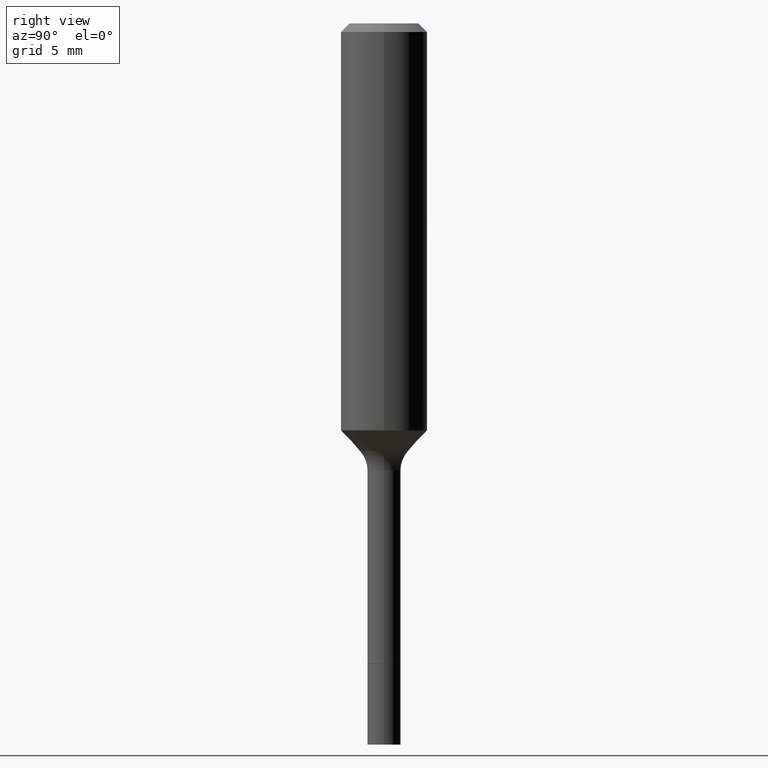
[diagram: clean part render]
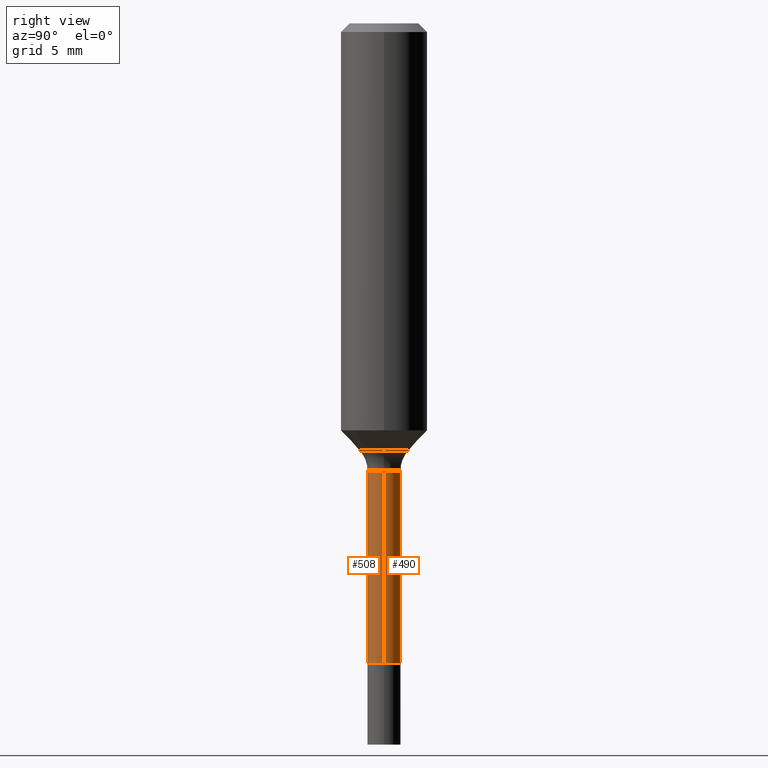
[diagram: same view with one multi-face feature highlighted, each face labeled with its STEP entity id]
A machine part, right view. The highlighted faces form ONE feature: a constant-radius fillet chain: 2 tangent blend faces with common blend radius 1.1506 mm. The faces share edges in the B-rep.
Their STEP definitions:
[1] entity #490 (Cylinder):
#3 = CARTESIAN_POINT ( 'NONE',  ( -0.04529999999999993060, -4.858609577209192694E-15, -1.220499999999999918 ) ) ;
#21 = EDGE_CURVE ( 'NONE', #326, #489, #24, .T. ) ;
#24 = CIRCLE ( 'NONE', #380, 0.04529999999999999999 ) ;
#29 = CARTESIAN_POINT ( 'NONE',  ( 4.272234004405433917E-29, -6.099617898958976438E-15, -1.747000000000000330 ) ) ;
#94 = EDGE_LOOP ( 'NONE', ( #477, #403, #296, #418 ) ) ;
#100 = AXIS2_PLACEMENT_3D ( 'NONE', #510, #512, #509 ) ;
#137 = CARTESIAN_POINT ( 'NONE',  ( 0.000000000000000000, 0.000000000000000000, 0.000000000000000000 ) ) ;
#150 = VECTOR ( 'NONE', #159, 39.37007874015748143 ) ;
#159 = DIRECTION ( 'NONE',  ( -2.445468806185136877E-29, 3.491481338843145188E-15, 1.000000000000000000 ) ) ;
#168 = LINE ( 'NONE', #399, #150 ) ;
#177 = AXIS2_PLACEMENT_3D ( 'NONE', #137, #295, #413 ) ;
#178 = CYLINDRICAL_SURFACE ( 'NONE', #177, 0.04529999999999996529 ) ;
#224 = VECTOR ( 'NONE', #488, 39.37007874015748143 ) ;
#269 = EDGE_CURVE ( 'NONE', #449, #400, #352, .T. ) ;
#292 = CARTESIAN_POINT ( 'NONE',  ( 0.04529999999999993060, -4.577681183357246518E-15, -1.220499999999999918 ) ) ;
#295 = DIRECTION ( 'NONE',  ( -2.445468806185136597E-29, 3.491481338843145583E-15, 1.000000000000000000 ) ) ;
#296 = ORIENTED_EDGE ( 'NONE', *, *, #269, .F. ) ;
#299 = EDGE_CURVE ( 'NONE', #489, #400, #168, .T. ) ;
#326 = VERTEX_POINT ( 'NONE', #447 ) ;
#338 = DIRECTION ( 'NONE',  ( 1.000000000000000000, -6.982962677686271444E-15, 0.000000000000000000 ) ) ;
#352 = CIRCLE ( 'NONE', #100, 0.04529999999999993060 ) ;
#367 = EDGE_CURVE ( 'NONE', #326, #449, #485, .T. ) ;
#377 = DIRECTION ( 'NONE',  ( -2.445468806185136597E-29, 3.491481338843145583E-15, 1.000000000000000000 ) ) ;
#379 = CARTESIAN_POINT ( 'NONE',  ( -0.04529999999999999999, -4.858609577209191905E-15, -1.747000000000000330 ) ) ;
#380 = AXIS2_PLACEMENT_3D ( 'NONE', #29, #377, #338 ) ;
#399 = CARTESIAN_POINT ( 'NONE',  ( -0.04529999999999996529, 3.218758592993251376E-16, -2.228277595885470812E-30 ) ) ;
#400 = VERTEX_POINT ( 'NONE', #3 ) ;
#403 = ORIENTED_EDGE ( 'NONE', *, *, #299, .T. ) ;
#413 = DIRECTION ( 'NONE',  ( 1.000000000000000000, -6.982962677686266711E-15, 4.876176775795936353E-29 ) ) ;
#418 = ORIENTED_EDGE ( 'NONE', *, *, #367, .F. ) ;
#433 = CARTESIAN_POINT ( 'NONE',  ( 0.04529999999999996529, -3.163282092991876386E-16, 2.208908079435557437E-30 ) ) ;
#447 = CARTESIAN_POINT ( 'NONE',  ( 0.04529999999999999999, -6.415946108258164718E-15, -1.747000000000000330 ) ) ;
#449 = VERTEX_POINT ( 'NONE', #292 ) ;
#477 = ORIENTED_EDGE ( 'NONE', *, *, #21, .T. ) ;
#485 = LINE ( 'NONE', #433, #224 ) ;
#488 = DIRECTION ( 'NONE',  ( -2.445468806185136877E-29, 3.491481338843145188E-15, 1.000000000000000000 ) ) ;
#489 = VERTEX_POINT ( 'NONE', #379 ) ;
#490 = ADVANCED_FACE ( 'NONE', ( #496 ), #178, .T. ) ;
#496 = FACE_OUTER_BOUND ( 'NONE', #94, .T. ) ;
#509 = DIRECTION ( 'NONE',  ( 1.000000000000000000, -6.982962677686260400E-15, 0.000000000000000000 ) ) ;
#510 = CARTESIAN_POINT ( 'NONE',  ( 2.984694677948959472E-29, -4.261352974058059028E-15, -1.220499999999999918 ) ) ;
#512 = DIRECTION ( 'NONE',  ( -2.445468806185136597E-29, 3.491481338843145583E-15, 1.000000000000000000 ) ) ;
[2] entity #508 (Cylinder):
#3 = CARTESIAN_POINT ( 'NONE',  ( -0.04529999999999993060, -4.858609577209192694E-15, -1.220499999999999918 ) ) ;
#22 = CARTESIAN_POINT ( 'NONE',  ( 0.000000000000000000, 0.000000000000000000, 0.000000000000000000 ) ) ;
#72 = CIRCLE ( 'NONE', #423, 0.04529999999999993060 ) ;
#83 = ORIENTED_EDGE ( 'NONE', *, *, #426, .F. ) ;
#101 = FACE_OUTER_BOUND ( 'NONE', #140, .T. ) ;
#105 = ORIENTED_EDGE ( 'NONE', *, *, #367, .T. ) ;
#138 = ORIENTED_EDGE ( 'NONE', *, *, #299, .F. ) ;
#140 = EDGE_LOOP ( 'NONE', ( #138, #365, #105, #83 ) ) ;
#150 = VECTOR ( 'NONE', #159, 39.37007874015748143 ) ;
#152 = DIRECTION ( 'NONE',  ( -2.445468806185136597E-29, 3.491481338843145583E-15, 1.000000000000000000 ) ) ;
#157 = CARTESIAN_POINT ( 'NONE',  ( 4.272234004405433917E-29, -6.099617898958976438E-15, -1.747000000000000330 ) ) ;
#159 = DIRECTION ( 'NONE',  ( -2.445468806185136877E-29, 3.491481338843145188E-15, 1.000000000000000000 ) ) ;
#168 = LINE ( 'NONE', #399, #150 ) ;
#214 = DIRECTION ( 'NONE',  ( 1.000000000000000000, -6.982962677686260400E-15, 0.000000000000000000 ) ) ;
#224 = VECTOR ( 'NONE', #488, 39.37007874015748143 ) ;
#257 = DIRECTION ( 'NONE',  ( -2.445468806185136597E-29, 3.491481338843145583E-15, 1.000000000000000000 ) ) ;
#271 = EDGE_CURVE ( 'NONE', #489, #326, #294, .T. ) ;
#280 = DIRECTION ( 'NONE',  ( -2.445468806185136597E-29, 3.491481338843145583E-15, 1.000000000000000000 ) ) ;
#292 = CARTESIAN_POINT ( 'NONE',  ( 0.04529999999999993060, -4.577681183357246518E-15, -1.220499999999999918 ) ) ;
#294 = CIRCLE ( 'NONE', #345, 0.04529999999999999999 ) ;
#299 = EDGE_CURVE ( 'NONE', #489, #400, #168, .T. ) ;
#305 = DIRECTION ( 'NONE',  ( 1.000000000000000000, -6.982962677686271444E-15, 0.000000000000000000 ) ) ;
#320 = AXIS2_PLACEMENT_3D ( 'NONE', #22, #257, #448 ) ;
#326 = VERTEX_POINT ( 'NONE', #447 ) ;
#345 = AXIS2_PLACEMENT_3D ( 'NONE', #157, #152, #305 ) ;
#365 = ORIENTED_EDGE ( 'NONE', *, *, #271, .T. ) ;
#367 = EDGE_CURVE ( 'NONE', #326, #449, #485, .T. ) ;
#379 = CARTESIAN_POINT ( 'NONE',  ( -0.04529999999999999999, -4.858609577209191905E-15, -1.747000000000000330 ) ) ;
#399 = CARTESIAN_POINT ( 'NONE',  ( -0.04529999999999996529, 3.218758592993251376E-16, -2.228277595885470812E-30 ) ) ;
#400 = VERTEX_POINT ( 'NONE', #3 ) ;
#423 = AXIS2_PLACEMENT_3D ( 'NONE', #483, #280, #214 ) ;
#426 = EDGE_CURVE ( 'NONE', #400, #449, #72, .T. ) ;
#433 = CARTESIAN_POINT ( 'NONE',  ( 0.04529999999999996529, -3.163282092991876386E-16, 2.208908079435557437E-30 ) ) ;
#447 = CARTESIAN_POINT ( 'NONE',  ( 0.04529999999999999999, -6.415946108258164718E-15, -1.747000000000000330 ) ) ;
#448 = DIRECTION ( 'NONE',  ( 1.000000000000000000, -6.982962677686266711E-15, 4.876176775795936353E-29 ) ) ;
#449 = VERTEX_POINT ( 'NONE', #292 ) ;
#483 = CARTESIAN_POINT ( 'NONE',  ( 2.984694677948959472E-29, -4.261352974058059028E-15, -1.220499999999999918 ) ) ;
#485 = LINE ( 'NONE', #433, #224 ) ;
#488 = DIRECTION ( 'NONE',  ( -2.445468806185136877E-29, 3.491481338843145188E-15, 1.000000000000000000 ) ) ;
#489 = VERTEX_POINT ( 'NONE', #379 ) ;
#493 = CYLINDRICAL_SURFACE ( 'NONE', #320, 0.04529999999999996529 ) ;
#508 = ADVANCED_FACE ( 'NONE', ( #101 ), #493, .T. ) ;